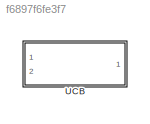
MODEL slx_f6897f6fe3f7
KIND library
CONFIG AbsTol = auto
CONFIG EnableMultiTasking = off
CONFIG FixedStep = auto
CONFIG MaxStep = auto
CONFIG MinStep = auto
CONFIG RelTol = 1e-3
CONFIG SampleTimeConstraint = Unconstrained
CONFIG Solver = VariableStepAuto
CONFIG SolverName = VariableStepAuto
CONFIG StartTime = 0.0
CONFIG StopTime = 10.0
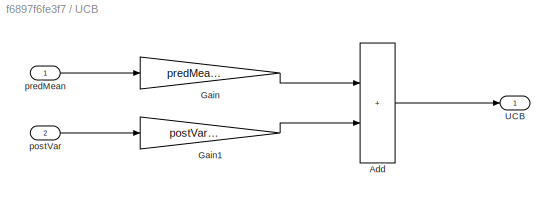
BLOCK [SubSystem] UCB
  Ports = [2, 1]
  RequestExecContextInheritance = off
BLOCK [Sum] UCB/Add
  IconShape = rectangular
  Ports = [2, 1]
BLOCK [Gain] UCB/Gain
  Gain = predMeanGain
BLOCK [Gain] UCB/Gain1
  Gain = postVarGain
BLOCK [Outport] UCB/UCB
BLOCK [Inport] UCB/postVar
  Port = 2
BLOCK [Inport] UCB/predMean
LINE UCB/Add:1 -> UCB/UCB:1
LINE UCB/Gain1:1 -> UCB/Add:2
LINE UCB/Gain:1 -> UCB/Add:1
LINE UCB/postVar:1 -> UCB/Gain1:1
LINE UCB/predMean:1 -> UCB/Gain:1
